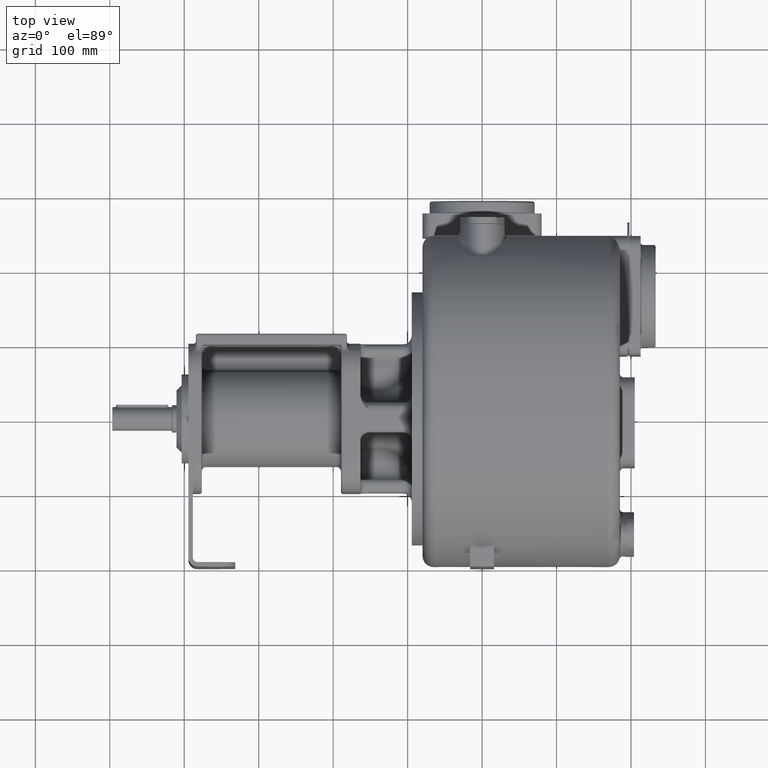
[diagram: clean part render]
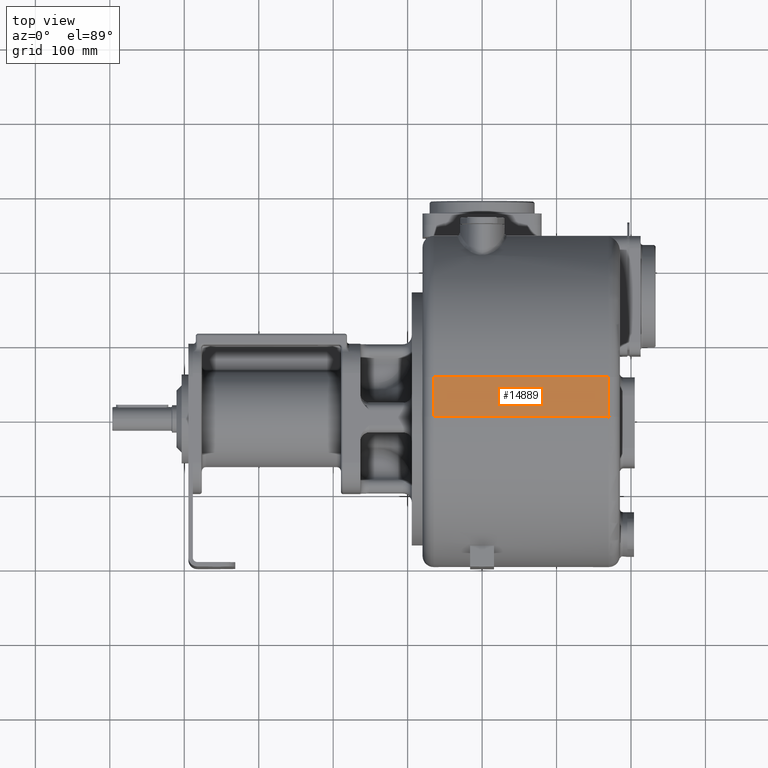
[diagram: same view with one face highlighted and labeled with its STEP entity id]
A machine part, top view. The second image highlights one B-rep face of the part: STEP entity #14889.
In plain terms, the highlighted planar face has unit normal (0, 0, 1).
Its self-contained STEP definition (entity closure, byte-faithful):
#1096=DIRECTION('',(1.E0,3.555737264910E-14,0.E0));
#1097=VECTOR('',#1096,2.35E2);
#1098=CARTESIAN_POINT('',(-6.5E1,2.528891589992E2,1.985E2));
#1099=LINE('',#1098,#1097);
#3237=DIRECTION('',(0.E0,1.E0,0.E0));
#3238=VECTOR('',#3237,5.338915899919E1);
#3239=CARTESIAN_POINT('',(-6.5E1,1.995E2,1.985E2));
#3240=LINE('',#3239,#3238);
#3241=DIRECTION('',(0.E0,-1.E0,0.E0));
#3242=VECTOR('',#3241,5.338915899917E1);
#3243=CARTESIAN_POINT('',(1.7E2,2.528891589992E2,1.985E2));
#3244=LINE('',#3243,#3242);
#3245=DIRECTION('',(1.E0,1.065511745029E-13,0.E0));
#3246=VECTOR('',#3245,2.35E2);
#3247=CARTESIAN_POINT('',(-6.5E1,1.995E2,1.985E2));
#3248=LINE('',#3247,#3246);
#9896=CARTESIAN_POINT('',(1.7E2,1.995E2,1.985E2));
#9897=VERTEX_POINT('',#9896);
#9902=CARTESIAN_POINT('',(1.7E2,2.528891589992E2,1.985E2));
#9903=VERTEX_POINT('',#9902);
#9934=CARTESIAN_POINT('',(-6.5E1,1.995E2,1.985E2));
#9935=VERTEX_POINT('',#9934);
#9938=CARTESIAN_POINT('',(-6.5E1,2.528891589992E2,1.985E2));
#9939=VERTEX_POINT('',#9938);
#14877=CARTESIAN_POINT('',(-8.E1,1.995E2,1.985E2));
#14878=DIRECTION('',(0.E0,0.E0,1.E0));
#14879=DIRECTION('',(0.E0,1.E0,0.E0));
#14880=AXIS2_PLACEMENT_3D('',#14877,#14878,#14879);
#14881=PLANE('',#14880);
#14882=ORIENTED_EDGE('',*,*,#12466,.T.);
#14883=ORIENTED_EDGE('',*,*,#12499,.T.);
#14885=ORIENTED_EDGE('',*,*,#14884,.T.);
#14886=ORIENTED_EDGE('',*,*,#14860,.F.);
#14887=EDGE_LOOP('',(#14882,#14883,#14885,#14886));
#14888=FACE_OUTER_BOUND('',#14887,.F.);
#14889=ADVANCED_FACE('',(#14888),#14881,.T.);
#12466=EDGE_CURVE('',#9935,#9939,#3240,.T.);
#12499=EDGE_CURVE('',#9939,#9903,#1099,.T.);
#14860=EDGE_CURVE('',#9935,#9897,#3248,.T.);
#14884=EDGE_CURVE('',#9903,#9897,#3244,.T.);